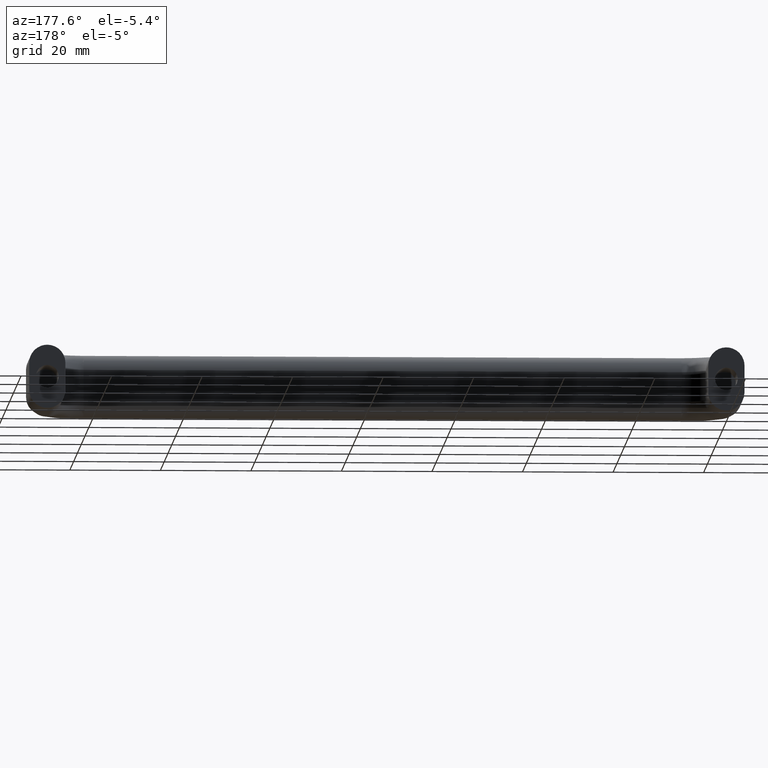
[diagram: clean part render]
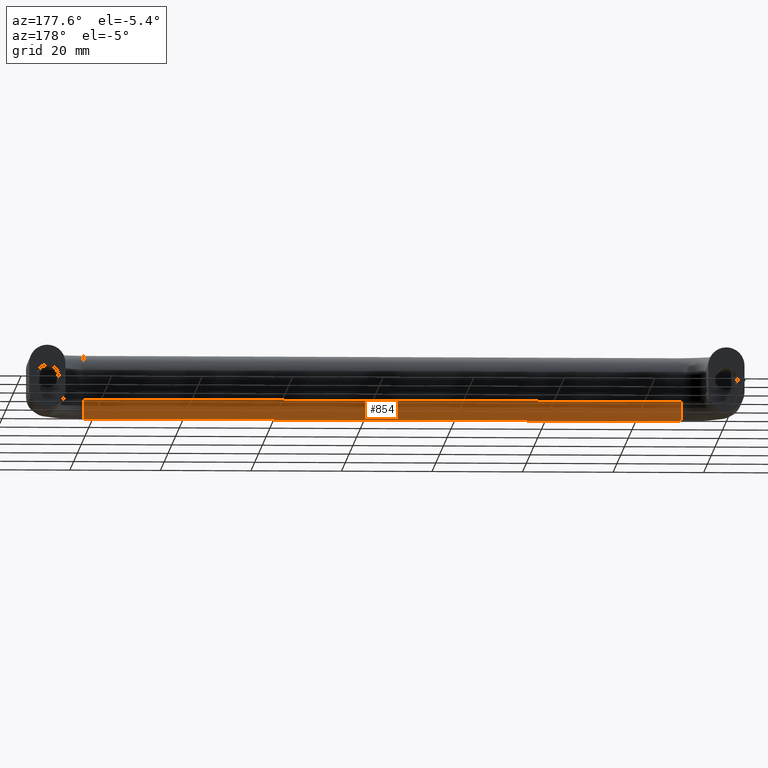
[diagram: same view with one face highlighted and labeled with its STEP entity id]
A machine part, auxiliary view. The second image highlights one B-rep face of the part: STEP entity #854.
In plain terms, the highlighted face is a freeform B-spline surface patch.
Its self-contained STEP definition (entity closure, byte-faithful):
#634=CARTESIAN_POINT('',(141.0,-30.0,-3.0));
#635=VERTEX_POINT('',#634);
#649=CARTESIAN_POINT('',(141.0,-22.0,-3.0));
#650=VERTEX_POINT('',#649);
#651=CARTESIAN_POINT('',(141.0,-30.0,-3.0));
#652=CARTESIAN_POINT('',(141.0,-30.000000000000004,-6.999999999999999));
#653=CARTESIAN_POINT('',(141.0,-26.0,-7.0));
#654=CARTESIAN_POINT('',(141.0,-22.000000000000007,-6.999999999999999));
#655=CARTESIAN_POINT('',(141.0,-22.0,-3.0));
#663=(BOUNDED_CURVE()B_SPLINE_CURVE(2,(#651,#652,#653,#654,#655),.UNSPECIFIED.,.F.,.U.)B_SPLINE_CURVE_WITH_KNOTS((3,2,3),(0.0,0.500000000000000,1.0),.UNSPECIFIED.)CURVE()GEOMETRIC_REPRESENTATION_ITEM()RATIONAL_B_SPLINE_CURVE((1.0,0.707106781186548,1.0,0.707106781186548,1.0))REPRESENTATION_ITEM(''));
#664=EDGE_CURVE('',#635,#650,#663,.T.);
#804=CARTESIAN_POINT('',(5.699999999999994,-22.001370700097770,-2.895292206768502));
#805=CARTESIAN_POINT('',(144.382499999999990,-22.001370700097770,-2.895292206768502));
#806=CARTESIAN_POINT('',(5.699999999999998,-21.891031708628390,-7.108968291371601));
#807=CARTESIAN_POINT('',(144.382500000000020,-21.891031708628390,-7.108968291371601));
#808=CARTESIAN_POINT('',(5.699999999999994,-26.104707793231491,-6.998629299902230));
#809=CARTESIAN_POINT('',(144.382499999999990,-26.104707793231491,-6.998629299902230));
#810=CARTESIAN_POINT('',(5.699999999999998,-30.318383877834584,-6.888290308432859));
#811=CARTESIAN_POINT('',(144.382500000000020,-30.318383877834584,-6.888290308432859));
#812=CARTESIAN_POINT('',(5.699999999999994,-29.987669334932509,-2.686163617088624));
#813=CARTESIAN_POINT('',(144.382499999999990,-29.987669334932509,-2.686163617088624));
#821=(BOUNDED_SURFACE()B_SPLINE_SURFACE(1,2,((#804,#806,#808,#810,#812),(#805,#807,#809,#811,#813)),.UNSPECIFIED.,.F.,.F.,.U.)B_SPLINE_SURFACE_WITH_KNOTS((2,2),(3,2,3),(0.0,138.682500000000000),(0.0,6.874142495469377,13.748284990938750),.UNSPECIFIED.)GEOMETRIC_REPRESENTATION_ITEM()RATIONAL_B_SPLINE_SURFACE(((1.0,0.688354575693754,1.0,0.688354575693754,1.0),(1.0,0.688354575693754,1.0,0.688354575693754,1.0)))REPRESENTATION_ITEM('')SURFACE());
#822=ORIENTED_EDGE('',*,*,#664,.F.);
#823=CARTESIAN_POINT('',(9.0,-30.0,-3.0));
#824=VERTEX_POINT('',#823);
#825=CARTESIAN_POINT('',(9.0,-30.0,-3.0));
#826=CARTESIAN_POINT('',(141.0,-30.0,-3.0));
#827=QUASI_UNIFORM_CURVE('',1,(#825,#826),.UNSPECIFIED.,.F.,.U.);
#828=EDGE_CURVE('',#824,#635,#827,.T.);
#829=ORIENTED_EDGE('',*,*,#828,.F.);
#830=CARTESIAN_POINT('',(9.0,-22.0,-3.0));
#831=VERTEX_POINT('',#830);
#832=CARTESIAN_POINT('',(9.0,-30.0,-3.0));
#833=CARTESIAN_POINT('',(9.000000000000002,-30.000000000000004,-6.999999999999999));
#834=CARTESIAN_POINT('',(9.0,-26.0,-7.0));
#835=CARTESIAN_POINT('',(9.000000000000002,-22.000000000000007,-6.999999999999999));
#836=CARTESIAN_POINT('',(9.0,-22.0,-3.0));
#844=(BOUNDED_CURVE()B_SPLINE_CURVE(2,(#832,#833,#834,#835,#836),.UNSPECIFIED.,.F.,.U.)B_SPLINE_CURVE_WITH_KNOTS((3,2,3),(0.0,0.500000000000000,1.0),.UNSPECIFIED.)CURVE()GEOMETRIC_REPRESENTATION_ITEM()RATIONAL_B_SPLINE_CURVE((1.0,0.707106781186548,1.0,0.707106781186548,1.0))REPRESENTATION_ITEM(''));
#845=EDGE_CURVE('',#824,#831,#844,.T.);
#846=ORIENTED_EDGE('',*,*,#845,.T.);
#847=CARTESIAN_POINT('',(9.0,-22.0,-3.0));
#848=CARTESIAN_POINT('',(141.0,-22.0,-3.0));
#849=QUASI_UNIFORM_CURVE('',1,(#847,#848),.UNSPECIFIED.,.F.,.U.);
#850=EDGE_CURVE('',#831,#650,#849,.T.);
#851=ORIENTED_EDGE('',*,*,#850,.T.);
#852=EDGE_LOOP('',(#822,#829,#846,#851));
#853=FACE_OUTER_BOUND('',#852,.T.);
#854=ADVANCED_FACE('',(#853),#821,.T.);